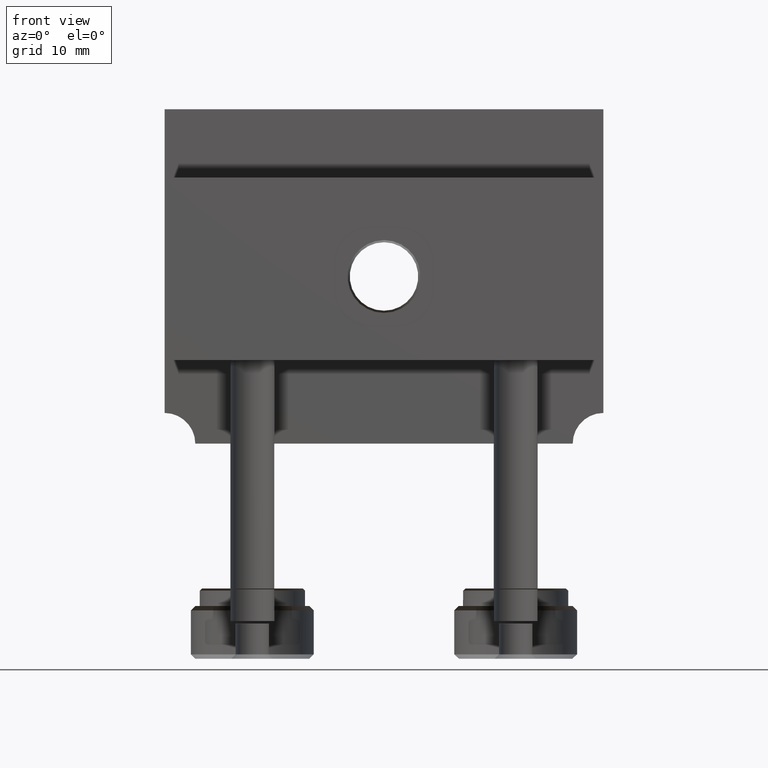
[diagram: clean part render]
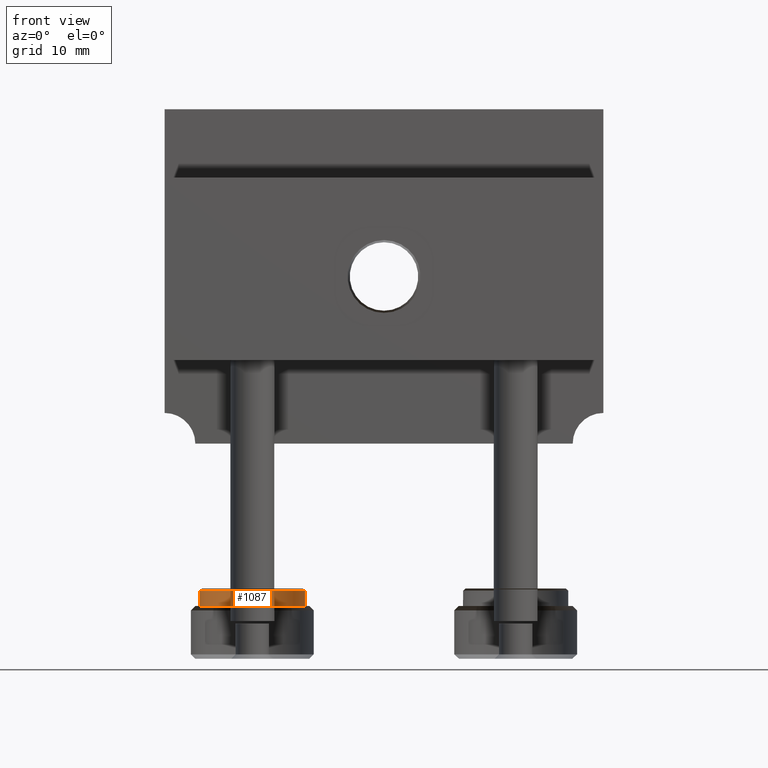
[diagram: same view with one face highlighted and labeled with its STEP entity id]
A machine part, front view. The second image highlights one B-rep face of the part: STEP entity #1087.
In plain terms, the highlighted cylindrical surface (bore or boss wall) has radius 6 mm, axis along (0, -0, 1).
Its self-contained STEP definition (entity closure, byte-faithful):
#117 = FACE_OUTER_BOUND ( 'NONE', #484, .T. ) ;
#148 = CARTESIAN_POINT ( 'NONE',  ( 2.863763509855391742, 28.54850150571978062, -7.102313630717886461 ) ) ;
#174 = AXIS2_PLACEMENT_3D ( 'NONE', #1494, #914, #1141 ) ;
#221 = ORIENTED_EDGE ( 'NONE', *, *, #1018, .T. ) ;
#278 = DIRECTION ( 'NONE',  ( 1.000000000000000000, 0.000000000000000000, -1.445602896647339163E-16 ) ) ;
#295 = CARTESIAN_POINT ( 'NONE',  ( 8.863763509855392186, 28.54850150571978062, -7.102313630717887349 ) ) ;
#361 = ORIENTED_EDGE ( 'NONE', *, *, #1171, .F. ) ;
#484 = EDGE_LOOP ( 'NONE', ( #361 ) ) ;
#693 = FACE_OUTER_BOUND ( 'NONE', #1344, .T. ) ;
#914 = DIRECTION ( 'NONE',  ( -1.759239726411918598E-16, 1.302529250467198802E-16, -1.000000000000000000 ) ) ;
#924 = VERTEX_POINT ( 'NONE', #932 ) ;
#932 = CARTESIAN_POINT ( 'NONE',  ( 8.863763509855392186, 28.54850150571978062, -8.852313630717889126 ) ) ;
#970 = CIRCLE ( 'NONE', #1099, 6.000000000000000000 ) ;
#1018 = EDGE_CURVE ( 'NONE', #924, #924, #1176, .T. ) ;
#1058 = DIRECTION ( 'NONE',  ( 1.000000000000000000, 0.000000000000000000, 0.000000000000000000 ) ) ;
#1073 = DIRECTION ( 'NONE',  ( 1.759239726411918598E-16, -1.302529250467198802E-16, 1.000000000000000000 ) ) ;
#1087 = ADVANCED_FACE ( 'NONE', ( #117, #693 ), #1175, .F. ) ;
#1099 = AXIS2_PLACEMENT_3D ( 'NONE', #148, #1211, #278 ) ;
#1141 = DIRECTION ( 'NONE',  ( 1.000000000000000000, 0.000000000000000000, -2.891205793294677833E-16 ) ) ;
#1171 = EDGE_CURVE ( 'NONE', #1263, #1263, #970, .T. ) ;
#1175 = CYLINDRICAL_SURFACE ( 'NONE', #1197, 6.000000000000000000 ) ;
#1176 = CIRCLE ( 'NONE', #174, 6.000000000000000888 ) ;
#1197 = AXIS2_PLACEMENT_3D ( 'NONE', #1415, #1073, #1058 ) ;
#1211 = DIRECTION ( 'NONE',  ( -1.759239726411918598E-16, 1.302529250467198802E-16, -1.000000000000000000 ) ) ;
#1263 = VERTEX_POINT ( 'NONE', #295 ) ;
#1344 = EDGE_LOOP ( 'NONE', ( #221 ) ) ;
#1415 = CARTESIAN_POINT ( 'NONE',  ( 2.863763509855387301, 28.54850150571978418, -34.65130350394121450 ) ) ;
#1494 = CARTESIAN_POINT ( 'NONE',  ( 2.863763509855391298, 28.54850150571978062, -8.852313630717887349 ) ) ;